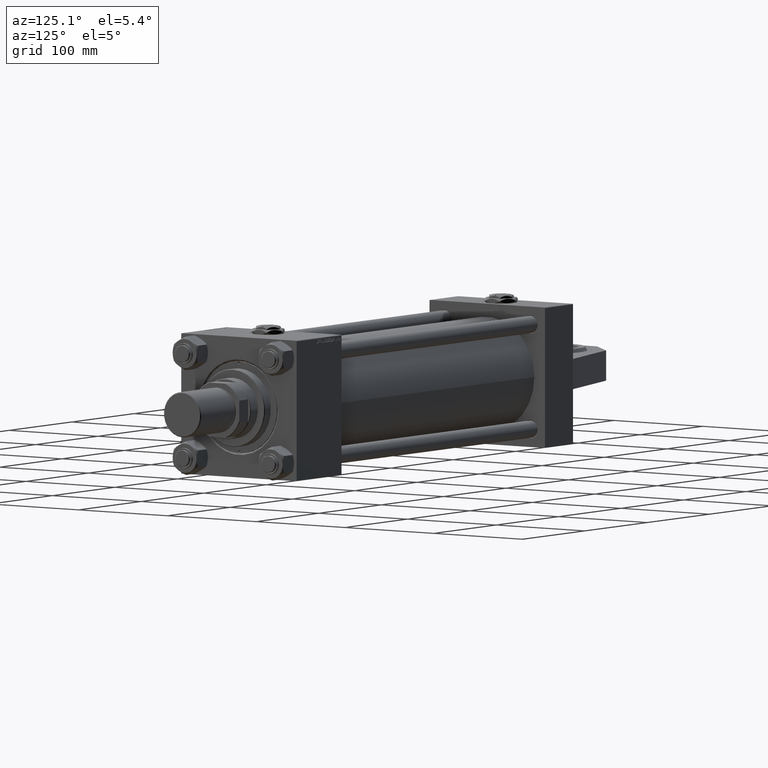
[diagram: clean part render]
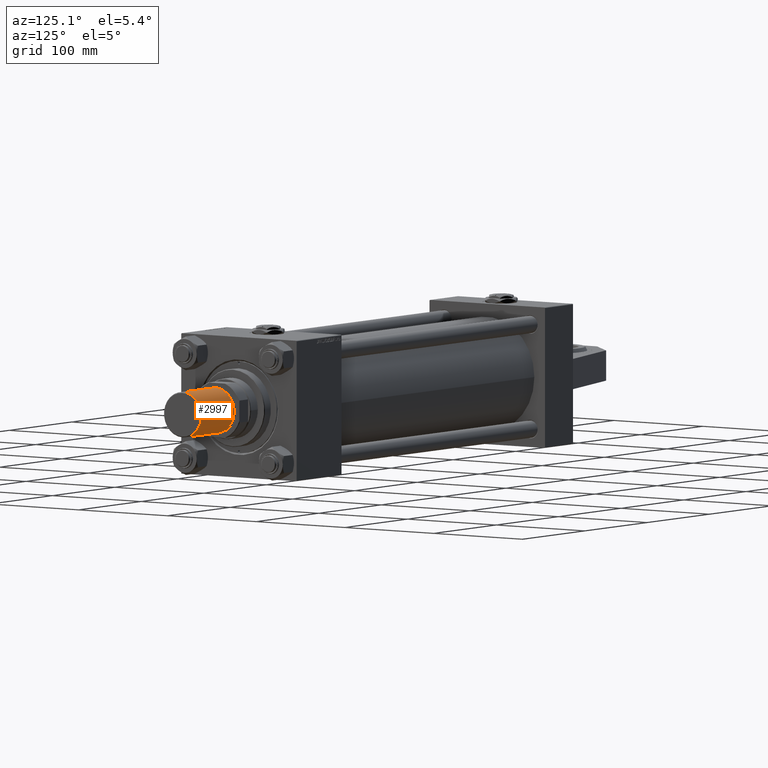
[diagram: same view with one face highlighted and labeled with its STEP entity id]
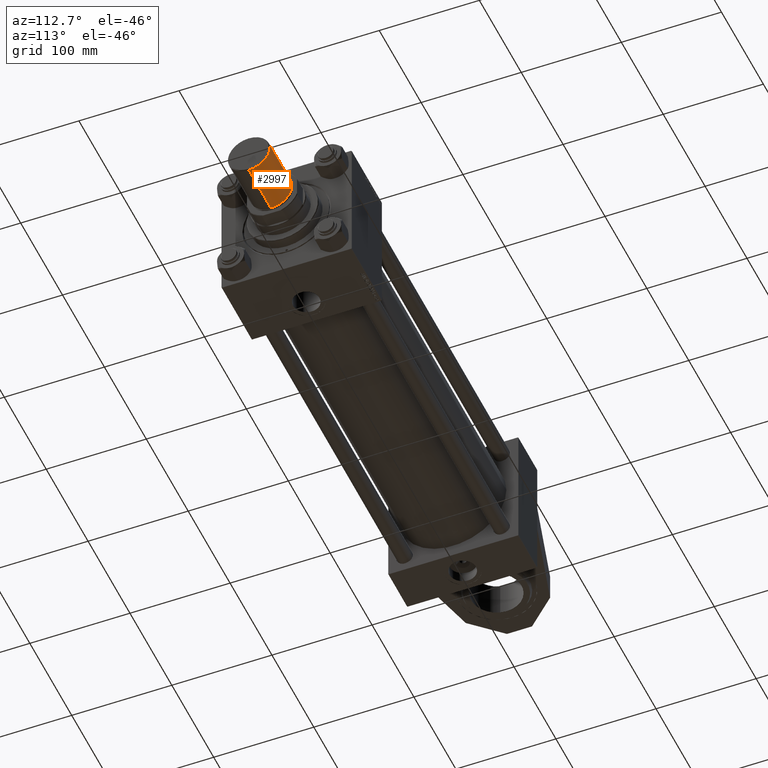
[diagram: same view with one face highlighted and labeled with its STEP entity id]
A machine part, auxiliary view. The second image highlights one B-rep face of the part: STEP entity #2997.
A second angle (auxiliary view) of the same face is appended — the face is thin or edge-on in the first view.
In plain terms, the highlighted cylindrical surface (edge-blend (fillet) strip) has radius 21 mm, axis along (1, -0, -0).
Its self-contained STEP definition (entity closure, byte-faithful):
#2654 = CIRCLE ( 'NONE', #49025, 21.00000000000000000 ) ;
#2997 = ADVANCED_FACE ( 'NONE', ( #6430 ), #39755, .T. ) ;
#5628 = DIRECTION ( 'NONE',  ( -0.000000000000000000, -0.000000000000000000, -1.000000000000000000 ) ) ;
#6430 = FACE_OUTER_BOUND ( 'NONE', #42767, .T. ) ;
#11189 = ORIENTED_EDGE ( 'NONE', *, *, #37737, .F. ) ;
#11257 = CARTESIAN_POINT ( 'NONE',  ( 21.00000000000000000, 2.571758278209441661E-15, 53.50000000000000000 ) ) ;
#13318 = VECTOR ( 'NONE', #5628, 1000.000000000000000 ) ;
#14757 = DIRECTION ( 'NONE',  ( -1.000000000000000000, 0.000000000000000000, 0.000000000000000000 ) ) ;
#14992 = EDGE_CURVE ( 'NONE', #41201, #42080, #2654, .T. ) ;
#15718 = VERTEX_POINT ( 'NONE', #34523 ) ;
#15729 = DIRECTION ( 'NONE',  ( -0.000000000000000000, -0.000000000000000000, -1.000000000000000000 ) ) ;
#16258 = VECTOR ( 'NONE', #15729, 1000.000000000000000 ) ;
#17722 = CARTESIAN_POINT ( 'NONE',  ( -21.00000000000000000, 0.000000000000000000, 53.50000000000000000 ) ) ;
#18501 = EDGE_CURVE ( 'NONE', #15718, #30407, #34604, .T. ) ;
#19198 = ORIENTED_EDGE ( 'NONE', *, *, #18501, .T. ) ;
#19499 = CARTESIAN_POINT ( 'NONE',  ( 21.00000000000000000, 2.571758278209441661E-15, 53.50000000000000000 ) ) ;
#20567 = DIRECTION ( 'NONE',  ( 1.000000000000000000, 0.000000000000000000, 0.000000000000000000 ) ) ;
#20864 = AXIS2_PLACEMENT_3D ( 'NONE', #24345, #37231, #20567 ) ;
#24345 = CARTESIAN_POINT ( 'NONE',  ( 0.000000000000000000, 0.000000000000000000, 0.7999999999999882760 ) ) ;
#24459 = CARTESIAN_POINT ( 'NONE',  ( -21.00000000000000000, 0.000000000000000000, 53.50000000000000000 ) ) ;
#27574 = LINE ( 'NONE', #19499, #16258 ) ;
#30407 = VERTEX_POINT ( 'NONE', #31308 ) ;
#31308 = CARTESIAN_POINT ( 'NONE',  ( -21.00000000000000000, 0.000000000000000000, 0.7999999999999882760 ) ) ;
#31789 = CARTESIAN_POINT ( 'NONE',  ( 0.000000000000000000, 0.000000000000000000, 53.50000000000000000 ) ) ;
#32594 = ORIENTED_EDGE ( 'NONE', *, *, #51688, .T. ) ;
#33706 = AXIS2_PLACEMENT_3D ( 'NONE', #51328, #38971, #14757 ) ;
#34523 = CARTESIAN_POINT ( 'NONE',  ( 21.00000000000000000, 2.571758278209441661E-15, 0.7999999999999882760 ) ) ;
#34604 = CIRCLE ( 'NONE', #20864, 21.00000000000000000 ) ;
#37231 = DIRECTION ( 'NONE',  ( -0.000000000000000000, -0.000000000000000000, 1.000000000000000000 ) ) ;
#37737 = EDGE_CURVE ( 'NONE', #42080, #30407, #42462, .T. ) ;
#38971 = DIRECTION ( 'NONE',  ( -0.000000000000000000, -0.000000000000000000, -1.000000000000000000 ) ) ;
#39755 = CYLINDRICAL_SURFACE ( 'NONE', #33706, 21.00000000000000000 ) ;
#39767 = ORIENTED_EDGE ( 'NONE', *, *, #14992, .F. ) ;
#39852 = DIRECTION ( 'NONE',  ( 1.000000000000000000, 0.000000000000000000, 0.000000000000000000 ) ) ;
#41201 = VERTEX_POINT ( 'NONE', #11257 ) ;
#42080 = VERTEX_POINT ( 'NONE', #24459 ) ;
#42462 = LINE ( 'NONE', #17722, #13318 ) ;
#42767 = EDGE_LOOP ( 'NONE', ( #39767, #32594, #19198, #11189 ) ) ;
#47910 = DIRECTION ( 'NONE',  ( 0.000000000000000000, 0.000000000000000000, 1.000000000000000000 ) ) ;
#49025 = AXIS2_PLACEMENT_3D ( 'NONE', #31789, #47910, #39852 ) ;
#51328 = CARTESIAN_POINT ( 'NONE',  ( 0.000000000000000000, 0.000000000000000000, 53.50000000000000000 ) ) ;
#51688 = EDGE_CURVE ( 'NONE', #41201, #15718, #27574, .T. ) ;